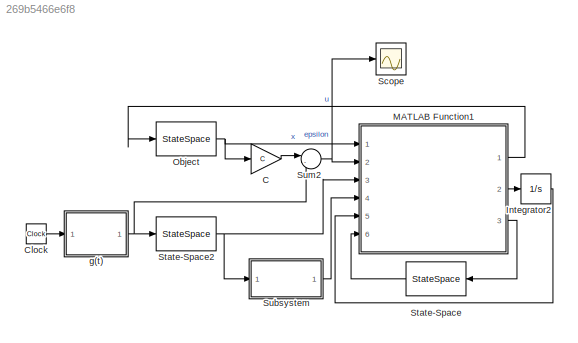
MODEL slx_269b5466e6f8
KIND model
CONFIG AbsTol = auto
CONFIG EnableMultiTasking = off
CONFIG FixedStep = auto
CONFIG MaxStep = 0.01
CONFIG MinStep = auto
CONFIG RelTol = 1e-3
CONFIG SampleTimeConstraint = Unconstrained
CONFIG SolverName = VariableStepAuto
CONFIG StartTime = 0.0
CONFIG StopTime = 1000
BLOCK [Gain] C
  Gain = C
  Multiplication = Matrix(K*u)
BLOCK [Clock] Clock
BLOCK [Integrator] Integrator2
  InitialCondition = [0;0]
  Ports = [1, 1]
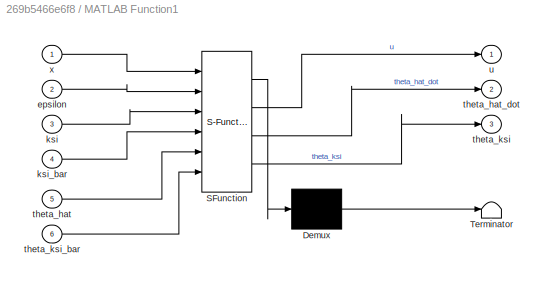
BLOCK [SubSystem] MATLAB Function1
  ErrorFcn = Stateflow.Translate.translate
  PermitHierarchicalResolution = ExplicitOnly
  Ports = [6, 3]
  RequestExecContextInheritance = off
  SFBlockType = MATLAB Function
  TreatAsAtomicUnit = on
BLOCK [Demux] MATLAB Function1/ Demux 
  Outputs = 1
  Ports = [1, 1]
BLOCK [S-Function] MATLAB Function1/ SFunction 
  EnableBusSupport = on
  FunctionName = sf_sfun
  Parameters = K,gamma
  PortCounts = [6 4]
  Ports = [6, 4]
  SFcnIsStateOwnerBlock = off
  SFunctionDeploymentMode = off
  Tag = Stateflow S-Function 1
BLOCK [Terminator] MATLAB Function1/ Terminator 
BLOCK [Inport] MATLAB Function1/epsilon
  Port = 2
BLOCK [Inport] MATLAB Function1/ksi
  Port = 3
BLOCK [Inport] MATLAB Function1/ksi_bar
  Port = 4
BLOCK [Inport] MATLAB Function1/theta_hat
  Port = 5
BLOCK [Outport] MATLAB Function1/theta_hat_dot
  Port = 2
BLOCK [Outport] MATLAB Function1/theta_ksi
  Port = 3
BLOCK [Inport] MATLAB Function1/theta_ksi_bar
  Port = 6
BLOCK [Outport] MATLAB Function1/u
BLOCK [Inport] MATLAB Function1/x
BLOCK [StateSpace] Object
  A = A
  B = b
  C = eye(2)
  D = [0;0]
  InitialCondition = 0
  Ports = [1, 1]
BLOCK [Scope] Scope
  Floating = off
  NumInputPorts = 1
  Ports = [1]
  ScopeSpecificationString = Simulink.scopes.TimeScopeBlockCfg('CurrentConfiguration', extmgr.ConfigurationSet(extmgr.Configuration('Core','General UI',true),extmgr.Configuration('Core','Source UI',true),extmgr.Configuration('Sources','WiredSimulink',true),extmgr.Configuration('Visuals','Time Domain',true,'SerializedDisplays',{struct('MinYLimReal','-12.91915','MaxYLimReal','13.19555','YLabelReal','','MinYLimMag','0.00000','Ma...<+1358ch>
BLOCK [StateSpace] State-Space
  A = A_m
  B = b
  C = C
  D = 0
  InitialCondition = 0
  NameLocation = top
  Ports = [1, 1]
BLOCK [StateSpace] State-Space2
  A = A_0g
  B = b_0g
  C = eye(2)
  D = [0;0]
  InitialCondition = 0
  Ports = [1, 1]
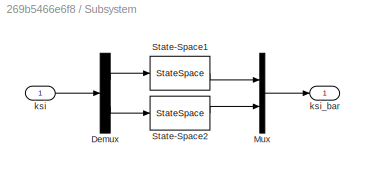
BLOCK [SubSystem] Subsystem
  Ports = [1, 1]
  RequestExecContextInheritance = off
BLOCK [Demux] Subsystem/Demux
  Outputs = 2
  Ports = [1, 2]
BLOCK [Mux] Subsystem/Mux
  DisplayOption = bar
  Inputs = 2
  Ports = [2, 1]
BLOCK [StateSpace] Subsystem/State-Space1
  A = A_m
  B = b
  C = C
  D = 0
  InitialCondition = 0
  Ports = [1, 1]
BLOCK [StateSpace] Subsystem/State-Space2
  A = A_m
  B = b
  C = C
  D = 0
  InitialCondition = 0
  Ports = [1, 1]
BLOCK [Inport] Subsystem/ksi
BLOCK [Outport] Subsystem/ksi_bar
BLOCK [Sum] Sum2
  Inputs = |-+
  Ports = [2, 1]
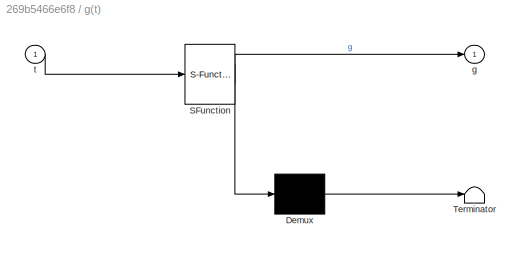
BLOCK [SubSystem] g(t)
  ErrorFcn = Stateflow.Translate.translate
  PermitHierarchicalResolution = ExplicitOnly
  Ports = [1, 1]
  RequestExecContextInheritance = off
  SFBlockType = MATLAB Function
  TreatAsAtomicUnit = on
BLOCK [Demux] g(t)/ Demux 
  Outputs = 1
  Ports = [1, 1]
BLOCK [S-Function] g(t)/ SFunction 
  EnableBusSupport = on
  FunctionName = sf_sfun
  PortCounts = [1 2]
  Ports = [1, 2]
  SFcnIsStateOwnerBlock = off
  SFunctionDeploymentMode = off
  Tag = Stateflow S-Function 2
BLOCK [Terminator] g(t)/ Terminator 
BLOCK [Outport] g(t)/g
BLOCK [Inport] g(t)/t
LINE C:1 -> Sum2:1
LINE Clock:1 -> g(t):1
LINE Integrator2:1 -> MATLAB Function1:5
LINE MATLAB Function1:1 -> Object:1
LINE MATLAB Function1:2 -> Integrator2:1
LINE MATLAB Function1:3 -> State-Space:1
NET Object:1 -> C:1, MATLAB Function1:1
NET State-Space2:1 -> MATLAB Function1:3, Subsystem:1
LINE State-Space:1 -> MATLAB Function1:6
LINE Subsystem/Demux:1 -> Subsystem/State-Space1:1
LINE Subsystem/Demux:2 -> Subsystem/State-Space2:1
LINE Subsystem/Mux:1 -> Subsystem/ksi_bar:1
LINE Subsystem/State-Space1:1 -> Subsystem/Mux:1
LINE Subsystem/State-Space2:1 -> Subsystem/Mux:2
LINE Subsystem/ksi:1 -> Subsystem/Demux:1
LINE Subsystem:1 -> MATLAB Function1:4
NET Sum2:1 -> MATLAB Function1:2, Scope:1
NET g(t):1 -> State-Space2:1, Sum2:2
note: NET lines group one-source signal fan-out (src -> all destinations, sorted); 1:1 wires keep LINE
CHART MATLAB Function1 states=1 transitions=1
  STATE_LABEL 'eML_blk_kernel()'
  STATE_LABEL "SCRIPT:\nfunction [u,theta_hat_dot, theta_ksi] = fcn(x, epsilon, ksi, ksi_bar, theta_hat, K, theta_ksi_bar, gamma)\n\ntheta_ksi = theta_hat'*ksi;\nepsilon_hat = epsilon - theta_hat'*ksi_bar + theta_ksi_bar;\ntheta_hat_dot = gamma*ksi_bar*epsilon_hat;\nu = -K*x + theta_hat'*ksi;\n"
CHART g(t) states=1 transitions=1
  STATE_LABEL 'eML_blk_kernel()'
  STATE_LABEL 'SCRIPT:\nfunction g = fcn(t)\n\ng = 6*cos(3*t+3);\n'
CHART  states=0 transitions=0
CHART  states=0 transitions=0
